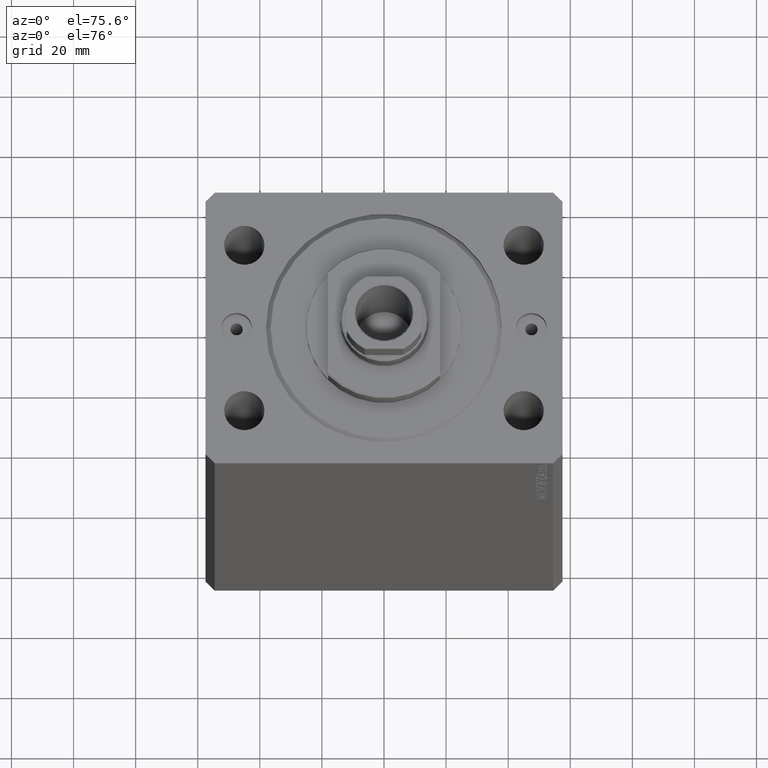
[diagram: clean part render]
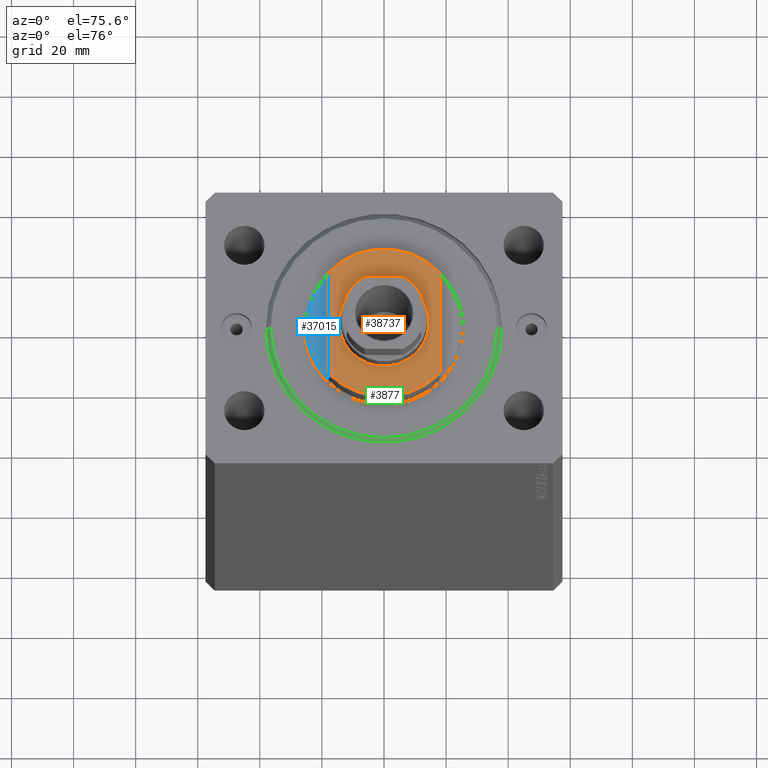
[diagram: same view with three faces highlighted in distinct colors, each labeled with its STEP entity id]
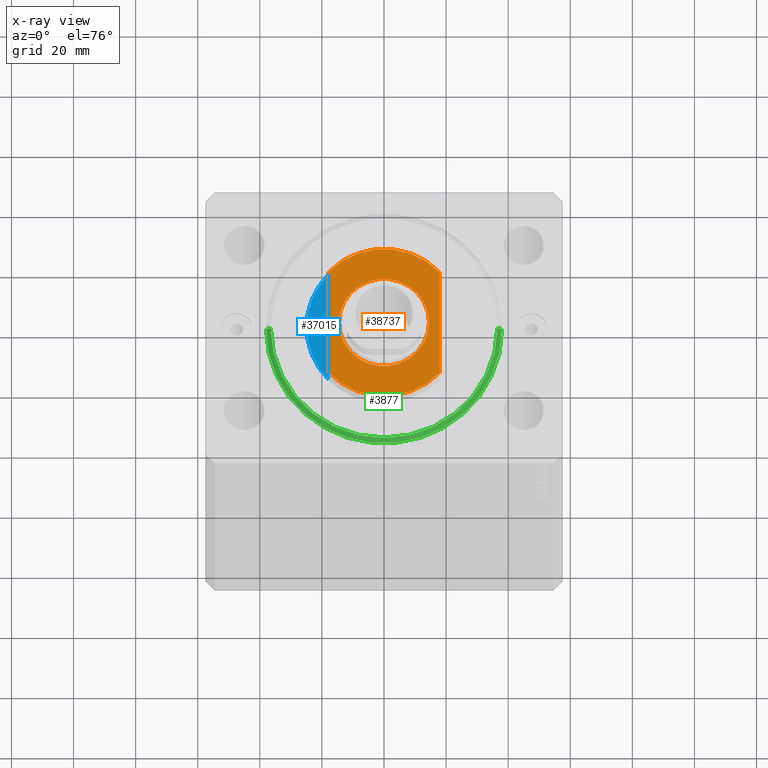
[diagram: x-ray of the same camera — body ghosted, the three highlighted faces saturated]
A machine part, auxiliary view with three faces highlighted in distinct colors.
The next image is the same camera in x-ray (body ghosted, the three faces saturated) — at least one of them is partly hidden behind the body in this view.
Their STEP definitions:

[orange] entity #38737 — the highlighted planar face has unit normal (0, 0, 1).
#121 = DIRECTION ( 'NONE',  ( 0.000000000000000000, 0.000000000000000000, -1.000000000000000000 ) ) ;
#2465 = EDGE_CURVE ( 'NONE', #5762, #11134, #4712, .T. ) ;
#2632 = ORIENTED_EDGE ( 'NONE', *, *, #35499, .T. ) ;
#2968 = DIRECTION ( 'NONE',  ( 0.000000000000000000, 0.000000000000000000, -1.000000000000000000 ) ) ;
#3407 = CARTESIAN_POINT ( 'NONE',  ( 0.000000000000000000, 0.000000000000000000, -7.000000000000000000 ) ) ;
#4081 = EDGE_LOOP ( 'NONE', ( #2632, #31207 ) ) ;
#4093 = AXIS2_PLACEMENT_3D ( 'NONE', #41921, #121, #20564 ) ;
#4712 = LINE ( 'NONE', #11686, #22249 ) ;
#5249 = CARTESIAN_POINT ( 'NONE',  ( 18.00000000000000000, -41.24318125460256113, -7.000000000000000000 ) ) ;
#5588 = AXIS2_PLACEMENT_3D ( 'NONE', #42004, #11191, #21518 ) ;
#5668 = CARTESIAN_POINT ( 'NONE',  ( 0.000000000000000000, 0.000000000000000000, -7.000000000000000000 ) ) ;
#5762 = VERTEX_POINT ( 'NONE', #38350 ) ;
#5901 = DIRECTION ( 'NONE',  ( -0.000000000000000000, -0.000000000000000000, 1.000000000000000000 ) ) ;
#7407 = CIRCLE ( 'NONE', #41150, 14.49999999999999822 ) ;
#7693 = CIRCLE ( 'NONE', #4093, 24.49999999999996803 ) ;
#10357 = CARTESIAN_POINT ( 'NONE',  ( 18.00000000000000000, 16.62077013859462227, -7.000000000000000000 ) ) ;
#10389 = ORIENTED_EDGE ( 'NONE', *, *, #25183, .T. ) ;
#11134 = VERTEX_POINT ( 'NONE', #12697 ) ;
#11191 = DIRECTION ( 'NONE',  ( 0.000000000000000000, 0.000000000000000000, -1.000000000000000000 ) ) ;
#11332 = CARTESIAN_POINT ( 'NONE',  ( 14.49999999999999822, 1.775737858763662015E-15, -7.000000000000000000 ) ) ;
#11415 = EDGE_CURVE ( 'NONE', #14101, #13389, #39655, .T. ) ;
#11686 = CARTESIAN_POINT ( 'NONE',  ( -18.00000000000000000, -41.24318125460256113, -7.000000000000000000 ) ) ;
#12697 = CARTESIAN_POINT ( 'NONE',  ( -18.00000000000000000, -16.62077013859462227, -7.000000000000000000 ) ) ;
#13389 = VERTEX_POINT ( 'NONE', #17260 ) ;
#13841 = VECTOR ( 'NONE', #43255, 1000.000000000000000 ) ;
#14101 = VERTEX_POINT ( 'NONE', #10357 ) ;
#14552 = FACE_OUTER_BOUND ( 'NONE', #27865, .T. ) ;
#17057 = ORIENTED_EDGE ( 'NONE', *, *, #11415, .T. ) ;
#17260 = CARTESIAN_POINT ( 'NONE',  ( 18.00000000000000000, -16.62077013859462227, -7.000000000000000000 ) ) ;
#17781 = CARTESIAN_POINT ( 'NONE',  ( -14.49999999999999822, 0.000000000000000000, -7.000000000000000000 ) ) ;
#17821 = ORIENTED_EDGE ( 'NONE', *, *, #2465, .F. ) ;
#18264 = EDGE_CURVE ( 'NONE', #42034, #20866, #22507, .T. ) ;
#20285 = DIRECTION ( 'NONE',  ( -1.000000000000000000, 0.000000000000000000, 0.000000000000000000 ) ) ;
#20504 = CARTESIAN_POINT ( 'NONE',  ( 0.000000000000000000, 0.000000000000000000, -7.000000000000000000 ) ) ;
#20564 = DIRECTION ( 'NONE',  ( -1.000000000000000000, 0.000000000000000000, 0.000000000000000000 ) ) ;
#20866 = VERTEX_POINT ( 'NONE', #17781 ) ;
#21518 = DIRECTION ( 'NONE',  ( -1.000000000000000000, 0.000000000000000000, -0.000000000000000000 ) ) ;
#22249 = VECTOR ( 'NONE', #25409, 1000.000000000000000 ) ;
#22507 = CIRCLE ( 'NONE', #28997, 14.49999999999999822 ) ;
#23446 = DIRECTION ( 'NONE',  ( -0.000000000000000000, -0.000000000000000000, 1.000000000000000000 ) ) ;
#25183 = EDGE_CURVE ( 'NONE', #5762, #14101, #7693, .T. ) ;
#25409 = DIRECTION ( 'NONE',  ( -0.000000000000000000, -1.000000000000000000, -0.000000000000000000 ) ) ;
#26435 = CIRCLE ( 'NONE', #42961, 24.49999999999996803 ) ;
#27865 = EDGE_LOOP ( 'NONE', ( #10389, #17057, #41853, #17821 ) ) ;
#28280 = PLANE ( 'NONE',  #5588 ) ;
#28997 = AXIS2_PLACEMENT_3D ( 'NONE', #5668, #5901, #39865 ) ;
#31207 = ORIENTED_EDGE ( 'NONE', *, *, #18264, .T. ) ;
#31877 = FACE_BOUND ( 'NONE', #4081, .T. ) ;
#35499 = EDGE_CURVE ( 'NONE', #20866, #42034, #7407, .T. ) ;
#38350 = CARTESIAN_POINT ( 'NONE',  ( -18.00000000000000000, 16.62077013859462227, -7.000000000000000000 ) ) ;
#38737 = ADVANCED_FACE ( 'NONE', ( #31877, #14552 ), #28280, .T. ) ;
#39655 = LINE ( 'NONE', #5249, #13841 ) ;
#39795 = EDGE_CURVE ( 'NONE', #13389, #11134, #26435, .T. ) ;
#39865 = DIRECTION ( 'NONE',  ( -1.000000000000000000, 0.000000000000000000, 0.000000000000000000 ) ) ;
#41150 = AXIS2_PLACEMENT_3D ( 'NONE', #20504, #23446, #20285 ) ;
#41853 = ORIENTED_EDGE ( 'NONE', *, *, #39795, .T. ) ;
#41921 = CARTESIAN_POINT ( 'NONE',  ( 0.000000000000000000, 0.000000000000000000, -7.000000000000000000 ) ) ;
#42004 = CARTESIAN_POINT ( 'NONE',  ( 0.000000000000000000, 0.000000000000000000, -7.000000000000000000 ) ) ;
#42034 = VERTEX_POINT ( 'NONE', #11332 ) ;
#42961 = AXIS2_PLACEMENT_3D ( 'NONE', #3407, #2968, #44127 ) ;
#43255 = DIRECTION ( 'NONE',  ( 0.000000000000000000, -1.000000000000000000, -0.000000000000000000 ) ) ;
#44127 = DIRECTION ( 'NONE',  ( -1.000000000000000000, 0.000000000000000000, 0.000000000000000000 ) ) ;

[blue] entity #37015 — the highlighted planar face has unit normal (0, 0, 1).
#889 = LINE ( 'NONE', #18635, #7177 ) ;
#3493 = FACE_OUTER_BOUND ( 'NONE', #15476, .T. ) ;
#7177 = VECTOR ( 'NONE', #31916, 1000.000000000000000 ) ;
#8869 = CARTESIAN_POINT ( 'NONE',  ( 0.000000000000000000, 0.000000000000000000, -1.000000000000000000 ) ) ;
#9164 = AXIS2_PLACEMENT_3D ( 'NONE', #24390, #41277, #21011 ) ;
#15476 = EDGE_LOOP ( 'NONE', ( #20149, #24297, #22835 ) ) ;
#16483 = AXIS2_PLACEMENT_3D ( 'NONE', #8869, #18970, #28648 ) ;
#16502 = AXIS2_PLACEMENT_3D ( 'NONE', #40780, #36523, #23238 ) ;
#18635 = CARTESIAN_POINT ( 'NONE',  ( 18.00000000000000000, -41.24318125460256113, -1.000000000000000000 ) ) ;
#18664 = CIRCLE ( 'NONE', #16483, 25.00000000000000000 ) ;
#18970 = DIRECTION ( 'NONE',  ( 0.000000000000000000, 0.000000000000000000, -1.000000000000000000 ) ) ;
#20149 = ORIENTED_EDGE ( 'NONE', *, *, #26213, .T. ) ;
#21011 = DIRECTION ( 'NONE',  ( 1.000000000000000000, 0.000000000000000000, 0.000000000000000000 ) ) ;
#21249 = VERTEX_POINT ( 'NONE', #42484 ) ;
#22059 = VERTEX_POINT ( 'NONE', #40665 ) ;
#22835 = ORIENTED_EDGE ( 'NONE', *, *, #25926, .F. ) ;
#23238 = DIRECTION ( 'NONE',  ( -1.000000000000000000, 0.000000000000000000, 0.000000000000000000 ) ) ;
#24297 = ORIENTED_EDGE ( 'NONE', *, *, #26300, .T. ) ;
#24390 = CARTESIAN_POINT ( 'NONE',  ( 0.000000000000000000, 0.000000000000000000, -1.000000000000000000 ) ) ;
#25926 = EDGE_CURVE ( 'NONE', #22059, #36680, #889, .T. ) ;
#26213 = EDGE_CURVE ( 'NONE', #22059, #21249, #18664, .T. ) ;
#26300 = EDGE_CURVE ( 'NONE', #21249, #36680, #42363, .T. ) ;
#26960 = CARTESIAN_POINT ( 'NONE',  ( 18.00000000000000000, -17.34935157289747920, -1.000000000000000000 ) ) ;
#28648 = DIRECTION ( 'NONE',  ( -1.000000000000000000, 0.000000000000000000, 0.000000000000000000 ) ) ;
#31916 = DIRECTION ( 'NONE',  ( 0.000000000000000000, -1.000000000000000000, -0.000000000000000000 ) ) ;
#36523 = DIRECTION ( 'NONE',  ( 0.000000000000000000, 0.000000000000000000, -1.000000000000000000 ) ) ;
#36680 = VERTEX_POINT ( 'NONE', #26960 ) ;
#37015 = ADVANCED_FACE ( 'NONE', ( #3493 ), #38122, .T. ) ;
#38122 = PLANE ( 'NONE',  #9164 ) ;
#40665 = CARTESIAN_POINT ( 'NONE',  ( 18.00000000000000000, 17.34935157289747920, -1.000000000000000000 ) ) ;
#40780 = CARTESIAN_POINT ( 'NONE',  ( 0.000000000000000000, 0.000000000000000000, -1.000000000000000000 ) ) ;
#41277 = DIRECTION ( 'NONE',  ( 0.000000000000000000, 0.000000000000000000, -1.000000000000000000 ) ) ;
#42363 = CIRCLE ( 'NONE', #16502, 25.00000000000000000 ) ;
#42484 = CARTESIAN_POINT ( 'NONE',  ( 25.00000000000000000, 0.000000000000000000, -1.000000000000000000 ) ) ;

[green] entity #3877 — the highlighted conical surface has half-angle 45 deg.
#316 = EDGE_CURVE ( 'NONE', #31031, #15720, #24836, .T. ) ;
#943 = AXIS2_PLACEMENT_3D ( 'NONE', #39756, #5353, #1975 ) ;
#1975 = DIRECTION ( 'NONE',  ( 1.000000000000000000, 0.000000000000000000, 0.000000000000000000 ) ) ;
#3877 = ADVANCED_FACE ( 'NONE', ( #5398 ), #36683, .T. ) ;
#4071 = CARTESIAN_POINT ( 'NONE',  ( 38.00000000000000000, 0.000000000000000000, 1.499999999999987566 ) ) ;
#4517 = LINE ( 'NONE', #4071, #22875 ) ;
#4527 = ORIENTED_EDGE ( 'NONE', *, *, #16391, .F. ) ;
#5153 = CARTESIAN_POINT ( 'NONE',  ( 38.00000000000000000, 4.653657836759941941E-15, 1.499999999999987566 ) ) ;
#5353 = DIRECTION ( 'NONE',  ( -0.000000000000000000, -0.000000000000000000, -1.000000000000000000 ) ) ;
#5398 = FACE_OUTER_BOUND ( 'NONE', #22279, .T. ) ;
#7294 = EDGE_CURVE ( 'NONE', #15720, #30001, #29554, .T. ) ;
#9398 = AXIS2_PLACEMENT_3D ( 'NONE', #39581, #36430, #18435 ) ;
#11335 = CARTESIAN_POINT ( 'NONE',  ( -38.00000000000000000, 4.653657836759941152E-15, 1.499999999999987566 ) ) ;
#11632 = ORIENTED_EDGE ( 'NONE', *, *, #41544, .T. ) ;
#14566 = CIRCLE ( 'NONE', #943, 36.50000000000000000 ) ;
#15720 = VERTEX_POINT ( 'NONE', #22854 ) ;
#15729 = VECTOR ( 'NONE', #17193, 1000.000000000000114 ) ;
#16391 = EDGE_CURVE ( 'NONE', #43466, #31031, #14566, .T. ) ;
#17193 = DIRECTION ( 'NONE',  ( -0.7071067811865507924, 8.659560562354972301E-17, 0.7071067811865441310 ) ) ;
#17581 = DIRECTION ( 'NONE',  ( 1.000000000000000000, 0.000000000000000000, 0.000000000000000000 ) ) ;
#18435 = DIRECTION ( 'NONE',  ( 1.000000000000000000, 0.000000000000000000, 0.000000000000000000 ) ) ;
#20958 = CARTESIAN_POINT ( 'NONE',  ( 0.000000000000000000, 0.000000000000000000, 1.499999999999987566 ) ) ;
#22279 = EDGE_LOOP ( 'NONE', ( #33919, #4527, #11632, #40333 ) ) ;
#22854 = CARTESIAN_POINT ( 'NONE',  ( -38.00000000000000000, 0.000000000000000000, 1.499999999999987566 ) ) ;
#22875 = VECTOR ( 'NONE', #42530, 1000.000000000000114 ) ;
#24836 = LINE ( 'NONE', #11335, #15729 ) ;
#29058 = CARTESIAN_POINT ( 'NONE',  ( 36.50000000000000000, 0.000000000000000000, 0.000000000000000000 ) ) ;
#29554 = CIRCLE ( 'NONE', #41052, 38.00000000000000000 ) ;
#30001 = VERTEX_POINT ( 'NONE', #5153 ) ;
#31031 = VERTEX_POINT ( 'NONE', #36381 ) ;
#33919 = ORIENTED_EDGE ( 'NONE', *, *, #316, .F. ) ;
#36381 = CARTESIAN_POINT ( 'NONE',  ( -36.50000000000000000, 4.561809326823889791E-15, 0.000000000000000000 ) ) ;
#36430 = DIRECTION ( 'NONE',  ( -0.000000000000000000, -0.000000000000000000, 1.000000000000000000 ) ) ;
#36683 = CONICAL_SURFACE ( 'NONE', #9398, 38.00000000000000000, 0.7853981633974529419 ) ;
#38278 = DIRECTION ( 'NONE',  ( -0.000000000000000000, -0.000000000000000000, 1.000000000000000000 ) ) ;
#39581 = CARTESIAN_POINT ( 'NONE',  ( 0.000000000000000000, 0.000000000000000000, 1.499999999999987566 ) ) ;
#39756 = CARTESIAN_POINT ( 'NONE',  ( 0.000000000000000000, 0.000000000000000000, 0.000000000000000000 ) ) ;
#40333 = ORIENTED_EDGE ( 'NONE', *, *, #7294, .F. ) ;
#41052 = AXIS2_PLACEMENT_3D ( 'NONE', #20958, #38278, #17581 ) ;
#41544 = EDGE_CURVE ( 'NONE', #43466, #30001, #4517, .T. ) ;
#42530 = DIRECTION ( 'NONE',  ( 0.7071067811865507924, 0.000000000000000000, 0.7071067811865441310 ) ) ;
#43466 = VERTEX_POINT ( 'NONE', #29058 ) ;